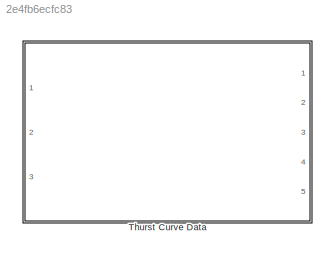
MODEL slx_2e4fb6ecfc83
KIND library
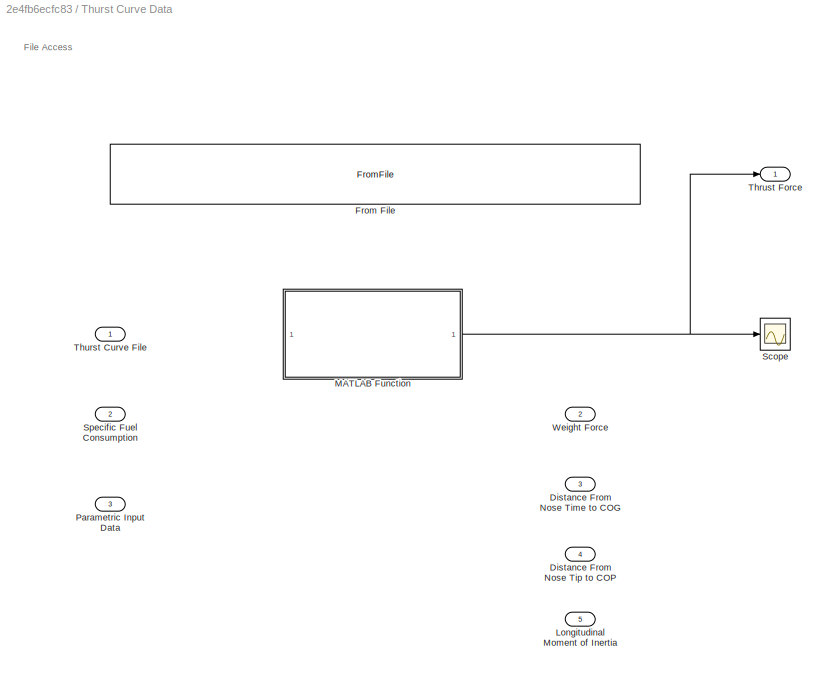
BLOCK [SubSystem] Thurst Curve Data
  Ports = [3, 5]
  RequestExecContextInheritance = off
BLOCK [Outport] Thurst Curve Data/Distance From Nose Time to COG
  IconDisplay = Port number
  Port = 3
BLOCK [Outport] Thurst Curve Data/Distance From Nose Tip to COP
  IconDisplay = Port number
  Port = 4
BLOCK [FromFile] Thurst Curve Data/From File
  FileName = <userpath>\Documents\Space\Rocketry\Performance\rocketry-performance\functions\data\thrust_curve.mat
  SampleTime = 0.01
BLOCK [Outport] Thurst Curve Data/Longitudinal Moment of Inertia
  IconDisplay = Port number
  Port = 5
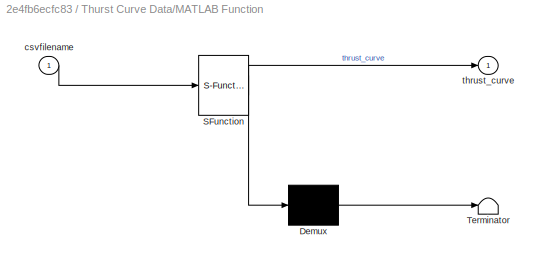
BLOCK [SubSystem] Thurst Curve Data/MATLAB Function
  ErrorFcn = Stateflow.Translate.translate
  PermitHierarchicalResolution = ExplicitOnly
  Ports = [1, 1]
  RequestExecContextInheritance = off
  SFBlockType = MATLAB Function
  TreatAsAtomicUnit = on
BLOCK [Demux] Thurst Curve Data/MATLAB Function/ Demux 
  Outputs = 1
  Ports = [1, 1]
BLOCK [S-Function] Thurst Curve Data/MATLAB Function/ SFunction 
  EnableBusSupport = off
  FunctionName = sf_sfun
  PortCounts = [1 2]
  Ports = [1, 2]
  Tag = Stateflow S-Function rocket_thrust_curve_library 2
BLOCK [Terminator] Thurst Curve Data/MATLAB Function/ Terminator 
BLOCK [Inport] Thurst Curve Data/MATLAB Function/csvfilename
  IconDisplay = Port number
BLOCK [Outport] Thurst Curve Data/MATLAB Function/thrust_curve
  IconDisplay = Port number
BLOCK [Inport] Thurst Curve Data/Parametric Input Data
  IconDisplay = Port number
  Port = 3
BLOCK [Scope] Thurst Curve Data/Scope
  DataFormat = StructureWithTime
  Floating = off
  NumInputPorts = 1
  Ports = [1]
  SampleTime = 0
  ShowLegends = off
BLOCK [Inport] Thurst Curve Data/Specific Fuel Consumption 
  IconDisplay = Port number
  Port = 2
BLOCK [Outport] Thurst Curve Data/Thrust Force
  IconDisplay = Port number
BLOCK [Inport] Thurst Curve Data/Thurst Curve File
  IconDisplay = Port number
BLOCK [Outport] Thurst Curve Data/Weight Force
  IconDisplay = Port number
  Port = 2
ANNOTATION Thurst Curve Data: File Access
NET Thurst Curve Data/MATLAB Function:1 -> Thurst Curve Data/Scope:1, Thurst Curve Data/Thrust Force:1
note: NET lines group one-source signal fan-out (src -> all destinations, sorted); 1:1 wires keep LINE
